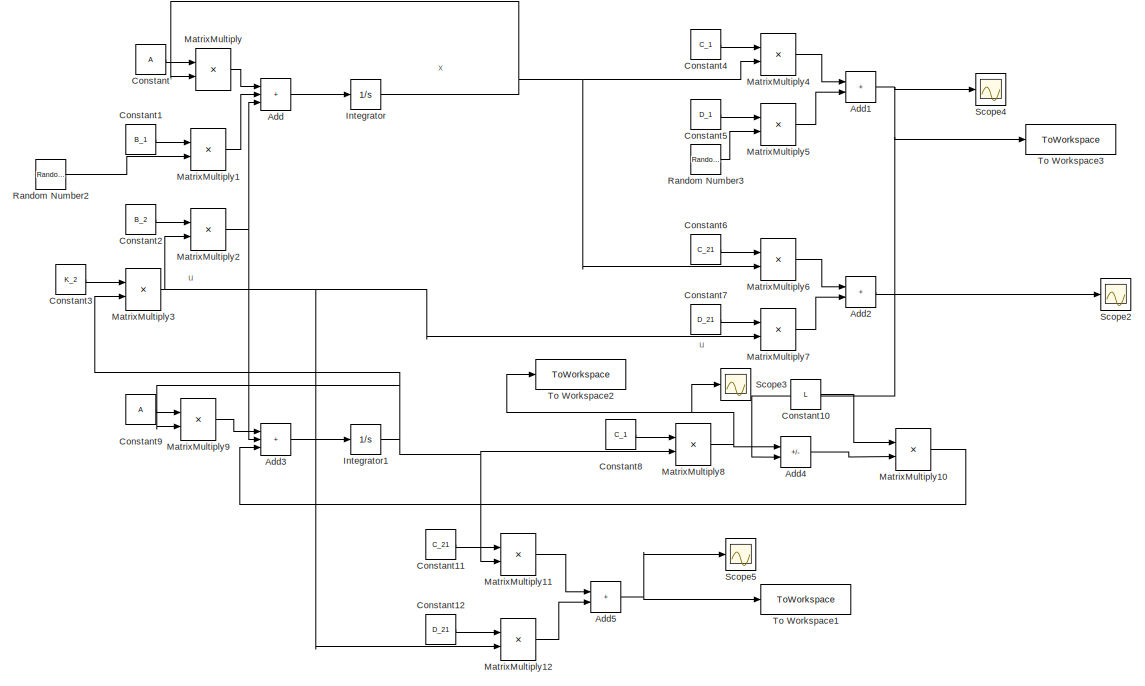
[diagram: root canvas - part 1/2, right side, full height]
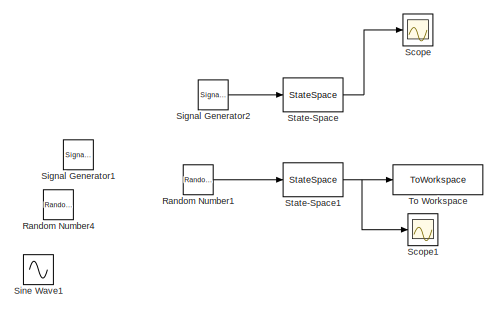
[diagram: root canvas - part 2/2, middle left region]
MODEL slx_34ca2587f5fd
KIND model
CONFIG AbsTol = auto
CONFIG EnableMultiTasking = off
CONFIG FixedStep = auto
CONFIG MaxStep = auto
CONFIG MinStep = auto
CONFIG RelTol = 1e-3
CONFIG SampleTimeConstraint = Unconstrained
CONFIG SolverName = VariableStepAuto
CONFIG StartTime = 0.0
CONFIG StopTime = 10
BLOCK [Sum] Add
  IconShape = rectangular
  Inputs = +++
BLOCK [Sum] Add1
  IconShape = rectangular
BLOCK [Sum] Add2
  IconShape = rectangular
BLOCK [Sum] Add3
  IconShape = rectangular
  Inputs = +++
BLOCK [Sum] Add4
  IconShape = rectangular
  Inputs = +-
BLOCK [Sum] Add5
  IconShape = rectangular
BLOCK [Constant] Constant
  Value = A
BLOCK [Constant] Constant1
  Value = B_1
BLOCK [Constant] Constant10
  Value = L
  VectorParams1D = off
BLOCK [Constant] Constant11
  Value = C_21
  VectorParams1D = off
BLOCK [Constant] Constant12
  Value = D_21
  VectorParams1D = off
BLOCK [Constant] Constant2
  Value = B_2
  VectorParams1D = off
BLOCK [Constant] Constant3
  Value = K_2
  VectorParams1D = off
BLOCK [Constant] Constant4
  Value = C_1
  VectorParams1D = off
BLOCK [Constant] Constant5
  Value = D_1
  VectorParams1D = off
BLOCK [Constant] Constant6
  Value = C_21
  VectorParams1D = off
BLOCK [Constant] Constant7
  Value = D_21
  VectorParams1D = off
BLOCK [Constant] Constant8
  Value = C_1
  VectorParams1D = off
BLOCK [Constant] Constant9
  Value = A
  VectorParams1D = off
BLOCK [Integrator] Integrator
  InitialCondition = x_0
BLOCK [Integrator] Integrator1
  InitialCondition = [0; 0]
BLOCK [Product] MatrixMultiply
  Multiplication = Matrix(*)
BLOCK [Product] MatrixMultiply1
  Multiplication = Matrix(*)
BLOCK [Product] MatrixMultiply10
  Multiplication = Matrix(*)
BLOCK [Product] MatrixMultiply11
  Multiplication = Matrix(*)
BLOCK [Product] MatrixMultiply12
  Multiplication = Matrix(*)
BLOCK [Product] MatrixMultiply2
  Multiplication = Matrix(*)
BLOCK [Product] MatrixMultiply3
  Multiplication = Matrix(*)
BLOCK [Product] MatrixMultiply4
  Multiplication = Matrix(*)
BLOCK [Product] MatrixMultiply5
  Multiplication = Matrix(*)
BLOCK [Product] MatrixMultiply6
  Multiplication = Matrix(*)
BLOCK [Product] MatrixMultiply7
  Multiplication = Matrix(*)
BLOCK [Product] MatrixMultiply8
  Multiplication = Matrix(*)
BLOCK [Product] MatrixMultiply9
  Multiplication = Matrix(*)
BLOCK [RandomNumber] Random Number1
  SampleTime = 0.001
BLOCK [RandomNumber] Random Number2
  SampleTime = 0.001
BLOCK [RandomNumber] Random Number3
  SampleTime = 0.001
BLOCK [RandomNumber] Random Number4
  SampleTime = 0.001
BLOCK [Scope] Scope
  Floating = off
  NumInputPorts = 1
  ScopeSpecificationString = Simulink.scopes.TimeScopeBlockCfg('CurrentConfiguration', extmgr.ConfigurationSet(extmgr.Configuration('Core','General UI',true),extmgr.Configuration('Core','Source UI',true),extmgr.Configuration('Sources','WiredSimulink',true,'DataLoggingVariableName','ScopeData1'),extmgr.Configuration('Visuals','Time Domain',true,'SerializedDisplays',{struct('MinYLimReal','-87.8783','MaxYLimReal','79.1445','YLab...<+1433ch>
BLOCK [Scope] Scope1
  Floating = off
  NumInputPorts = 1
  ScopeSpecificationString = Simulink.scopes.TimeScopeBlockCfg('CurrentConfiguration', extmgr.ConfigurationSet(extmgr.Configuration('Core','General UI',true),extmgr.Configuration('Core','Source UI',true),extmgr.Configuration('Sources','WiredSimulink',true),extmgr.Configuration('Visuals','Time Domain',true,'SerializedDisplays',{struct('MinYLimReal','-31.06597','MaxYLimReal','20.31442','YLabelReal','','MinYLimMag','0.00000','Ma...<+1374ch>
BLOCK [Scope] Scope2
  Floating = off
  NumInputPorts = 1
  ScopeSpecificationString = Simulink.scopes.TimeScopeBlockCfg('CurrentConfiguration', extmgr.ConfigurationSet(extmgr.Configuration('Core','General UI',true),extmgr.Configuration('Core','Source UI',true),extmgr.Configuration('Sources','WiredSimulink',true,'DataLoggingVariableName','ScopeData2'),extmgr.Configuration('Visuals','Time Domain',true,'SerializedDisplays',{struct('MinYLimReal','-31.06597','MaxYLimReal','20.31442','YL...<+1418ch>
BLOCK [Scope] Scope3
  Floating = off
  NumInputPorts = 1
  ScopeSpecificationString = Simulink.scopes.TimeScopeBlockCfg('CurrentConfiguration', extmgr.ConfigurationSet(extmgr.Configuration('Core','General UI',true),extmgr.Configuration('Core','Source UI',true),extmgr.Configuration('Sources','WiredSimulink',true,'DataLoggingVariableName','ScopeData3'),extmgr.Configuration('Visuals','Time Domain',true,'SerializedDisplays',{struct('MinYLimReal','-47.25875','MaxYLimReal','7.44477','YLa...<+1378ch>
BLOCK [Scope] Scope4
  Floating = off
  NumInputPorts = 1
  ScopeSpecificationString = Simulink.scopes.TimeScopeBlockCfg('CurrentConfiguration', extmgr.ConfigurationSet(extmgr.Configuration('Core','General UI',true),extmgr.Configuration('Core','Source UI',true),extmgr.Configuration('Sources','WiredSimulink',true,'DataLoggingVariableName','ScopeData4'),extmgr.Configuration('Visuals','Time Domain',true,'SerializedDisplays',{struct('MinYLimReal','-70.36077','MaxYLimReal','28.51608','YL...<+1369ch>
BLOCK [Scope] Scope5
  Floating = off
  NumInputPorts = 1
  ScopeSpecificationString = Simulink.scopes.TimeScopeBlockCfg('CurrentConfiguration', extmgr.ConfigurationSet(extmgr.Configuration('Core','General UI',true),extmgr.Configuration('Core','Source UI',true),extmgr.Configuration('Sources','WiredSimulink',true,'DataLoggingVariableName','ScopeData5'),extmgr.Configuration('Visuals','Time Domain',true,'SerializedDisplays',{struct('MinYLimReal','-30.79093','MaxYLimReal','17.83907','YL...<+1389ch>
BLOCK [SignalGenerator] Signal Generator1
  Amplitude = 0.1
  Frequency = 5
  Units = rad/sec
  WaveForm = square
BLOCK [SignalGenerator] Signal Generator2
  Amplitude = 0.1
  Frequency = 5
  Units = rad/sec
  WaveForm = square
BLOCK [Sin] Sine Wave1
  SampleTime = 0
BLOCK [StateSpace] State-Space
  A = [A, B_2*K_1;-L*C_1,A+B_2*K_1+L*C_1]
  B = [B_1; -L*D_1]
  C = [C_2, D_2*K_1]
  D = zeros(size(C_2, 1), size(B_1, 2))
  InitialCondition = [x_0, 0*x_0]
BLOCK [StateSpace] State-Space1
  A = [A, B_2*K_2;-L*C_1,A+B_2*K_2+L*C_1]
  B = [B_1; -L*D_1]
  C = [C_21 D_21*K_2]
  D = zeros(size(C_21, 1), size(B_1, 2))
  InitialCondition = [x_0, 0*x_0]
BLOCK [ToWorkspace] To Workspace
  FixptAsFi = on
  MaxDataPoints = inf
  SampleTime = -1
  SaveFormat = Timeseries
  VariableName = z
BLOCK [ToWorkspace] To Workspace1
  MaxDataPoints = inf
  SampleTime = -1
  SaveFormat = Timeseries
  VariableName = z1
BLOCK [ToWorkspace] To Workspace2
  FixptAsFi = on
  MaxDataPoints = inf
  SampleTime = -1
  SaveFormat = Timeseries
  VariableName = y
BLOCK [ToWorkspace] To Workspace3
  FixptAsFi = on
  MaxDataPoints = inf
  SampleTime = -1
  SaveFormat = Timeseries
  VariableName = y1
ANNOTATION (root): u
ANNOTATION (root): x
NET Add1:1 -> Add4:2, Scope4:1, To Workspace3:1
LINE Add2:1 -> Scope2:1
LINE Add3:1 -> Integrator1:1
LINE Add4:1 -> MatrixMultiply10:2
NET Add5:1 -> Scope5:1, To Workspace1:1
LINE Add:1 -> Integrator:1
LINE Constant10:1 -> MatrixMultiply10:1
LINE Constant11:1 -> MatrixMultiply11:1
LINE Constant12:1 -> MatrixMultiply12:1
LINE Constant1:1 -> MatrixMultiply1:1
LINE Constant2:1 -> MatrixMultiply2:1
LINE Constant3:1 -> MatrixMultiply3:1
LINE Constant4:1 -> MatrixMultiply4:1
LINE Constant5:1 -> MatrixMultiply5:1
LINE Constant6:1 -> MatrixMultiply6:1
LINE Constant7:1 -> MatrixMultiply7:1
LINE Constant8:1 -> MatrixMultiply8:1
LINE Constant9:1 -> MatrixMultiply9:1
LINE Constant:1 -> MatrixMultiply:1
NET Integrator1:1 -> MatrixMultiply11:2, MatrixMultiply3:2, MatrixMultiply8:2, MatrixMultiply9:2
NET Integrator:1 -> MatrixMultiply4:2, MatrixMultiply6:2, MatrixMultiply:2
LINE MatrixMultiply10:1 -> Add3:3
LINE MatrixMultiply11:1 -> Add5:1
LINE MatrixMultiply12:1 -> Add5:2
LINE MatrixMultiply1:1 -> Add:2
NET MatrixMultiply2:1 -> Add3:2, Add:3
NET MatrixMultiply3:1 -> MatrixMultiply12:2, MatrixMultiply2:2, MatrixMultiply7:2
LINE MatrixMultiply4:1 -> Add1:1
LINE MatrixMultiply5:1 -> Add1:2
LINE MatrixMultiply6:1 -> Add2:1
LINE MatrixMultiply7:1 -> Add2:2
NET MatrixMultiply8:1 -> Add4:1, Scope3:1, To Workspace2:1
LINE MatrixMultiply9:1 -> Add3:1
LINE MatrixMultiply:1 -> Add:1
LINE Random Number1:1 -> State-Space1:1
LINE Random Number2:1 -> MatrixMultiply1:2
LINE Random Number3:1 -> MatrixMultiply5:2
LINE Signal Generator2:1 -> State-Space:1
NET State-Space1:1 -> Scope1:1, To Workspace:1
LINE State-Space:1 -> Scope:1
note: NET lines group one-source signal fan-out (src -> all destinations, sorted); 1:1 wires keep LINE
